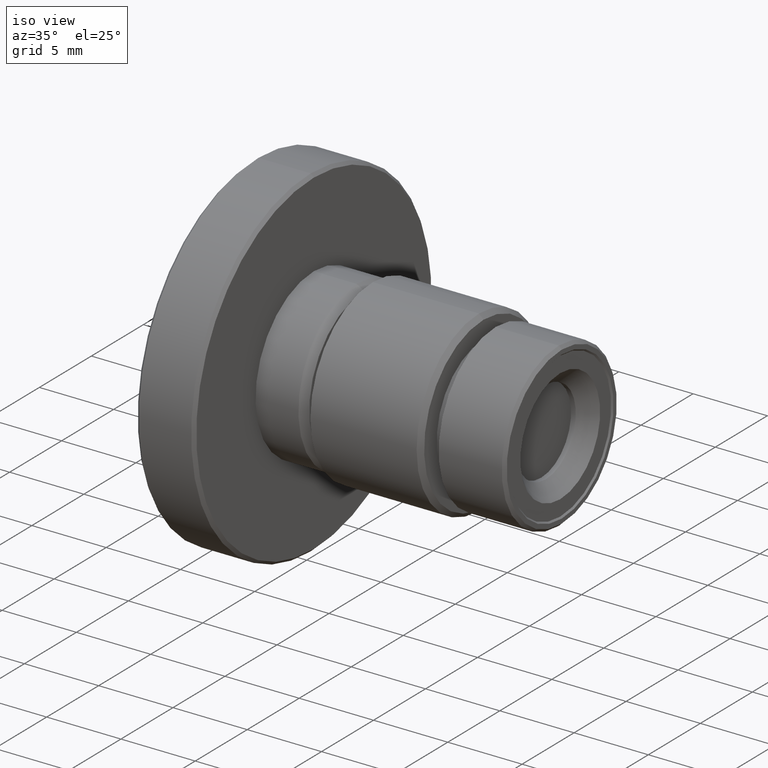
[diagram: clean part render]
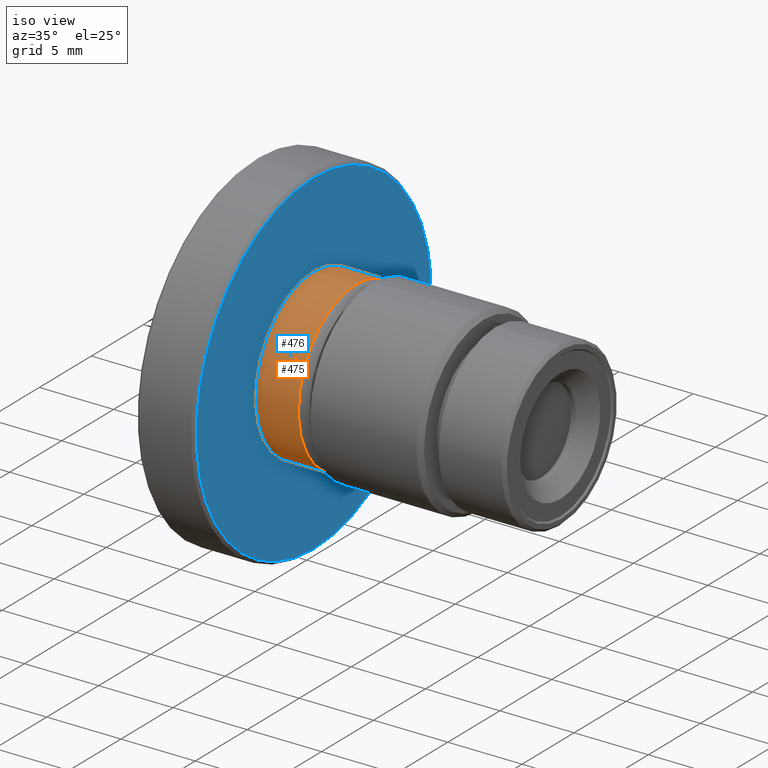
[diagram: same view with the hole feature highlighted: cylindrical wall and planar end face, labeled with their STEP entity ids]
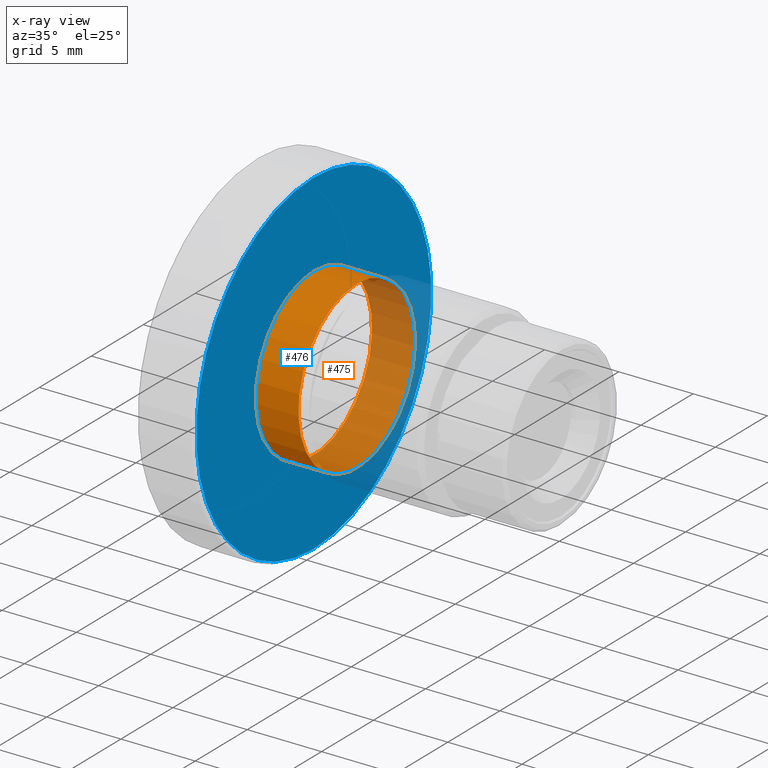
[diagram: x-ray of the same camera — body ghosted, the hole faces saturated]
A machine part, iso view. The highlighted faces form one hole feature of diameter 11.2 mm: the cylindrical wall (entity #475, orange) and its adjacent planar end face (entity #476, blue) — they share a circular edge in the B-rep.
The next image is the same camera in x-ray (body ghosted, the hole faces saturated) — the bore reads through the body.
Wall:
#76=ORIENTED_EDGE('',*,*,#108,.F.);
#77=ORIENTED_EDGE('',*,*,#107,.T.);
#107=EDGE_CURVE('',#132,#132,#157,.T.);
#108=EDGE_CURVE('',#133,#133,#158,.T.);
#132=VERTEX_POINT('',#701);
#133=VERTEX_POINT('',#704);
#157=CIRCLE('',#525,5.60000000000001);
#158=CIRCLE('',#527,5.60000000000001);
#201=EDGE_LOOP('',(#76));
#202=EDGE_LOOP('',(#77));
#251=FACE_BOUND('',#201,.T.);
#252=FACE_BOUND('',#202,.T.);
#269=CYLINDRICAL_SURFACE('',#526,5.60000000000001);
#475=ADVANCED_FACE('',(#251,#252),#269,.T.);
#525=AXIS2_PLACEMENT_3D('',#700,#617,#618);
#526=AXIS2_PLACEMENT_3D('',#702,#619,#620);
#527=AXIS2_PLACEMENT_3D('',#703,#621,#622);
#617=DIRECTION('',(-1.,0.,0.));
#618=DIRECTION('',(0.,0.,1.));
#619=DIRECTION('',(-1.,0.,0.));
#620=DIRECTION('',(0.,0.,1.));
#621=DIRECTION('',(-1.,0.,0.));
#622=DIRECTION('',(0.,0.,1.));
#700=CARTESIAN_POINT('',(-16.6413189278124,0.,0.));
#701=CARTESIAN_POINT('',(-16.6413189278124,0.,5.60000000000001));
#702=CARTESIAN_POINT('',(-60.,0.,0.));
#703=CARTESIAN_POINT('',(-19.5217036855419,0.,0.));
#704=CARTESIAN_POINT('',(-19.5217036855419,0.,5.60000000000001));
End face:
#36=PLANE('',#528);
#78=ORIENTED_EDGE('',*,*,#109,.F.);
#79=ORIENTED_EDGE('',*,*,#108,.T.);
#108=EDGE_CURVE('',#133,#133,#158,.T.);
#109=EDGE_CURVE('',#134,#134,#159,.T.);
#133=VERTEX_POINT('',#704);
#134=VERTEX_POINT('',#707);
#158=CIRCLE('',#527,5.60000000000001);
#159=CIRCLE('',#529,11.2942484089188);
#203=EDGE_LOOP('',(#78));
#204=EDGE_LOOP('',(#79));
#253=FACE_BOUND('',#203,.T.);
#254=FACE_BOUND('',#204,.T.);
#476=ADVANCED_FACE('',(#253,#254),#36,.F.);
#527=AXIS2_PLACEMENT_3D('',#703,#621,#622);
#528=AXIS2_PLACEMENT_3D('',#705,#623,#624);
#529=AXIS2_PLACEMENT_3D('',#706,#625,#626);
#621=DIRECTION('',(-1.,0.,0.));
#622=DIRECTION('',(0.,0.,1.));
#623=DIRECTION('',(-1.,0.,0.));
#624=DIRECTION('',(0.,0.,1.));
#625=DIRECTION('',(-1.,0.,0.));
#626=DIRECTION('',(0.,0.,1.));
#703=CARTESIAN_POINT('',(-19.5217036855419,0.,0.));
#704=CARTESIAN_POINT('',(-19.5217036855419,0.,5.60000000000001));
#705=CARTESIAN_POINT('',(-19.521703685542,0.,11.2942484089188));
#706=CARTESIAN_POINT('',(-19.5217036855421,0.,0.));
#707=CARTESIAN_POINT('',(-19.5217036855421,0.,11.2942484089188));